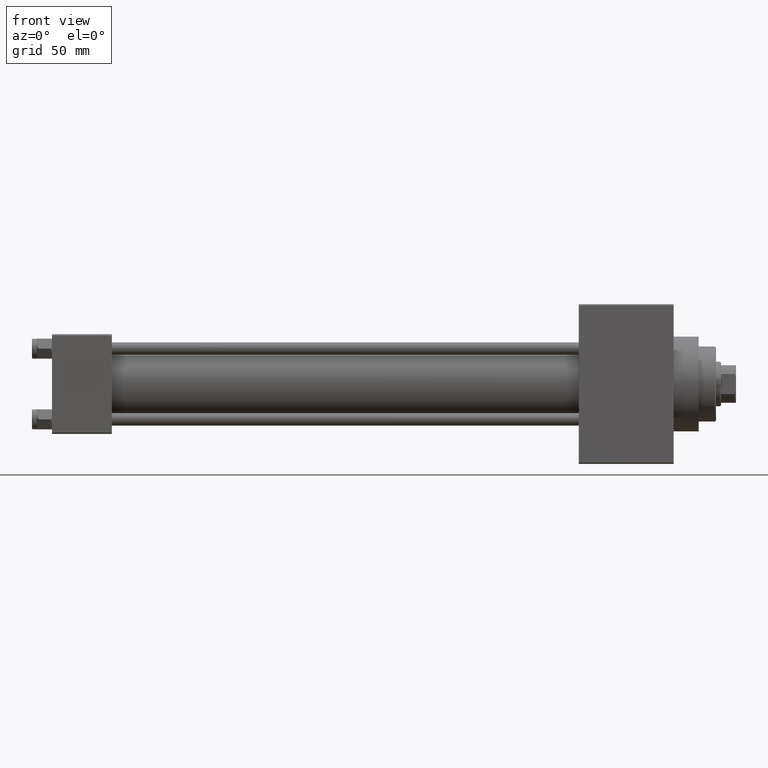
[diagram: clean part render]
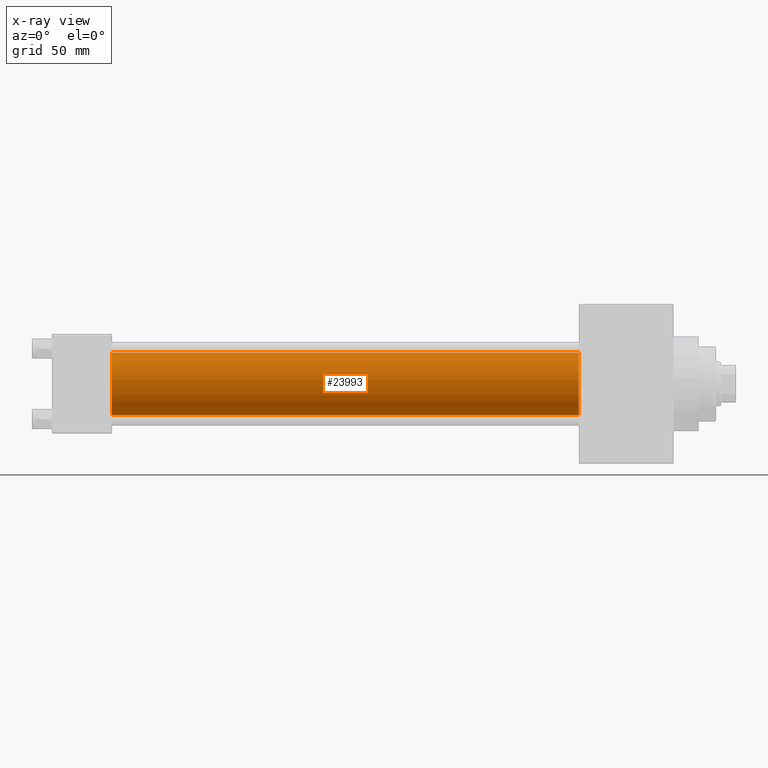
[diagram: x-ray — body ghosted, one internal face saturated and labeled with its STEP entity id]
A machine part, front view, then the same camera in x-ray: the body is ghosted and one INTERNAL B-rep face — a face not visible from any outside direction — is saturated and labeled: STEP entity #23993.
In plain terms, the highlighted cylindrical surface (edge-blend (fillet) strip) has radius 12.5 mm, axis along (-1, -0, -0).
Its self-contained STEP definition (entity closure, byte-faithful):
#422 = EDGE_LOOP ( 'NONE', ( #27647, #5181, #19424, #37315 ) ) ;
#2264 = CARTESIAN_POINT ( 'NONE',  ( 211.0000000000000000, -2.602085213965210642E-15, 12.49999999999999645 ) ) ;
#4176 = CARTESIAN_POINT ( 'NONE',  ( 24.00000000000000000, -2.602085213965210642E-15, 12.49999999999999645 ) ) ;
#5181 = ORIENTED_EDGE ( 'NONE', *, *, #38360, .T. ) ;
#6849 = EDGE_CURVE ( 'NONE', #23427, #20874, #13369, .T. ) ;
#7262 = CARTESIAN_POINT ( 'NONE',  ( 211.0000000000000000, -1.071276715031019515E-15, -12.49999999999999645 ) ) ;
#8193 = DIRECTION ( 'NONE',  ( 1.000000000000000000, 0.000000000000000000, 0.000000000000000000 ) ) ;
#8514 = CIRCLE ( 'NONE', #12436, 12.49999999999999645 ) ;
#9670 = EDGE_CURVE ( 'NONE', #20874, #13939, #23572, .T. ) ;
#10590 = DIRECTION ( 'NONE',  ( 1.000000000000000000, 0.000000000000000000, 0.000000000000000000 ) ) ;
#10867 = CARTESIAN_POINT ( 'NONE',  ( 24.00000000000000000, -1.071276715031019515E-15, -12.49999999999999645 ) ) ;
#12436 = AXIS2_PLACEMENT_3D ( 'NONE', #25228, #10590, #33178 ) ;
#12822 = CARTESIAN_POINT ( 'NONE',  ( 211.0000000000000000, -2.602085213965210642E-15, 0.000000000000000000 ) ) ;
#13369 = LINE ( 'NONE', #28523, #31387 ) ;
#13939 = VERTEX_POINT ( 'NONE', #10867 ) ;
#15560 = CARTESIAN_POINT ( 'NONE',  ( 211.0000000000000000, -1.071276715031019515E-15, -12.49999999999999645 ) ) ;
#15632 = CARTESIAN_POINT ( 'NONE',  ( 24.00000000000000000, -2.602085213965210642E-15, 0.000000000000000000 ) ) ;
#15821 = FACE_OUTER_BOUND ( 'NONE', #422, .T. ) ;
#19424 = ORIENTED_EDGE ( 'NONE', *, *, #9670, .F. ) ;
#19532 = DIRECTION ( 'NONE',  ( 0.000000000000000000, 0.000000000000000000, 1.000000000000000000 ) ) ;
#19784 = DIRECTION ( 'NONE',  ( -1.000000000000000000, -0.000000000000000000, -0.000000000000000000 ) ) ;
#20652 = VECTOR ( 'NONE', #30695, 1000.000000000000000 ) ;
#20874 = VERTEX_POINT ( 'NONE', #4176 ) ;
#23427 = VERTEX_POINT ( 'NONE', #2264 ) ;
#23441 = AXIS2_PLACEMENT_3D ( 'NONE', #12822, #19784, #19532 ) ;
#23572 = CIRCLE ( 'NONE', #45769, 12.49999999999999645 ) ;
#23732 = CYLINDRICAL_SURFACE ( 'NONE', #23441, 12.49999999999999645 ) ;
#23993 = ADVANCED_FACE ( 'NONE', ( #15821 ), #23732, .F. ) ;
#25228 = CARTESIAN_POINT ( 'NONE',  ( 211.0000000000000000, -2.602085213965210642E-15, 0.000000000000000000 ) ) ;
#27042 = DIRECTION ( 'NONE',  ( 0.000000000000000000, 0.000000000000000000, -1.000000000000000000 ) ) ;
#27212 = EDGE_CURVE ( 'NONE', #23427, #27707, #8514, .T. ) ;
#27647 = ORIENTED_EDGE ( 'NONE', *, *, #27212, .T. ) ;
#27707 = VERTEX_POINT ( 'NONE', #7262 ) ;
#28523 = CARTESIAN_POINT ( 'NONE',  ( 211.0000000000000000, -2.602085213965210642E-15, 12.49999999999999645 ) ) ;
#30695 = DIRECTION ( 'NONE',  ( -1.000000000000000000, -0.000000000000000000, -0.000000000000000000 ) ) ;
#31387 = VECTOR ( 'NONE', #43641, 1000.000000000000000 ) ;
#33178 = DIRECTION ( 'NONE',  ( 0.000000000000000000, 0.000000000000000000, -1.000000000000000000 ) ) ;
#37315 = ORIENTED_EDGE ( 'NONE', *, *, #6849, .F. ) ;
#38360 = EDGE_CURVE ( 'NONE', #27707, #13939, #38380, .T. ) ;
#38380 = LINE ( 'NONE', #15560, #20652 ) ;
#43641 = DIRECTION ( 'NONE',  ( -1.000000000000000000, -0.000000000000000000, -0.000000000000000000 ) ) ;
#45769 = AXIS2_PLACEMENT_3D ( 'NONE', #15632, #8193, #27042 ) ;